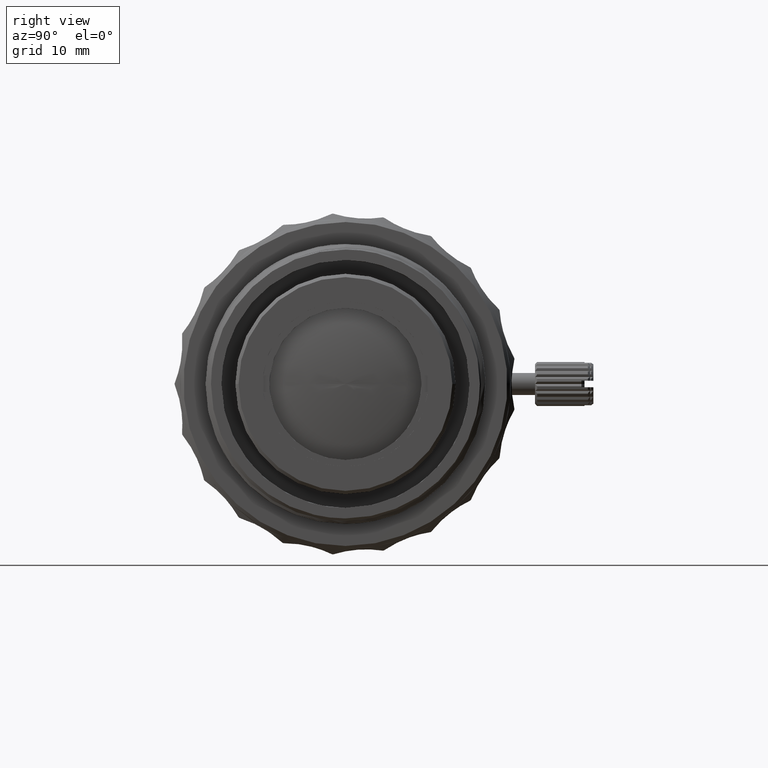
[diagram: clean part render]
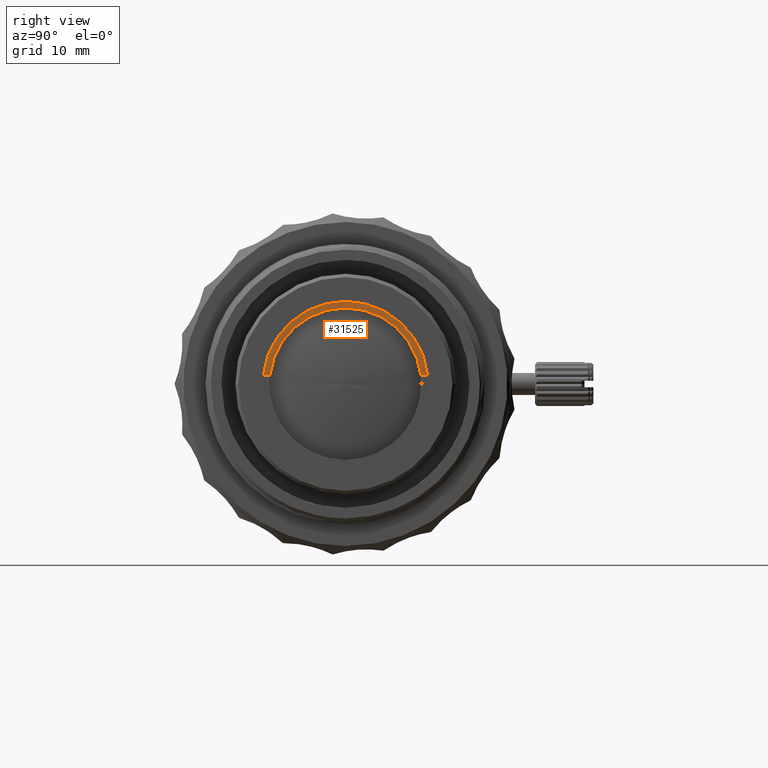
[diagram: same view with one face highlighted and labeled with its STEP entity id]
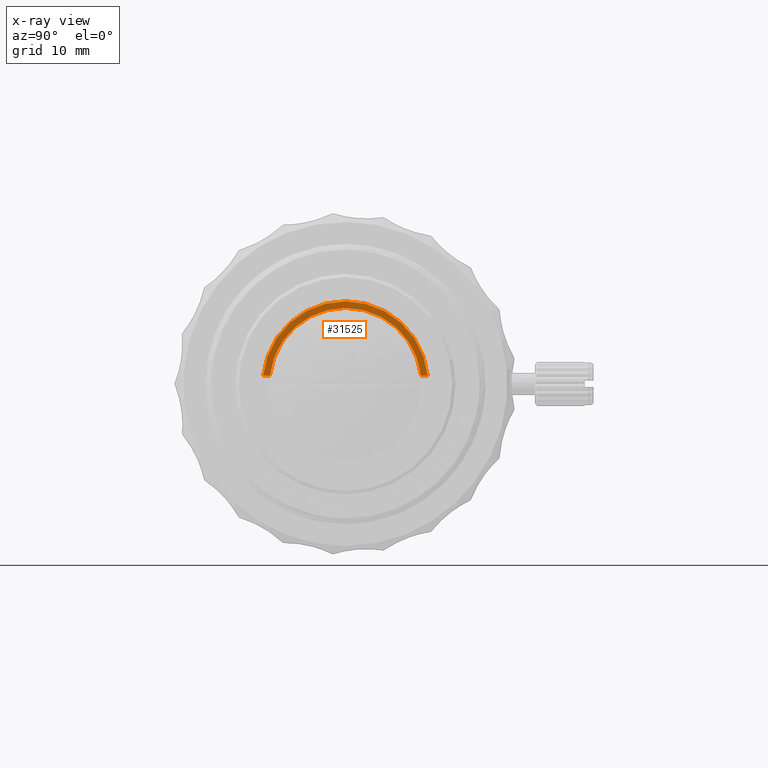
[diagram: x-ray of the same camera — body ghosted, the highlighted face saturated]
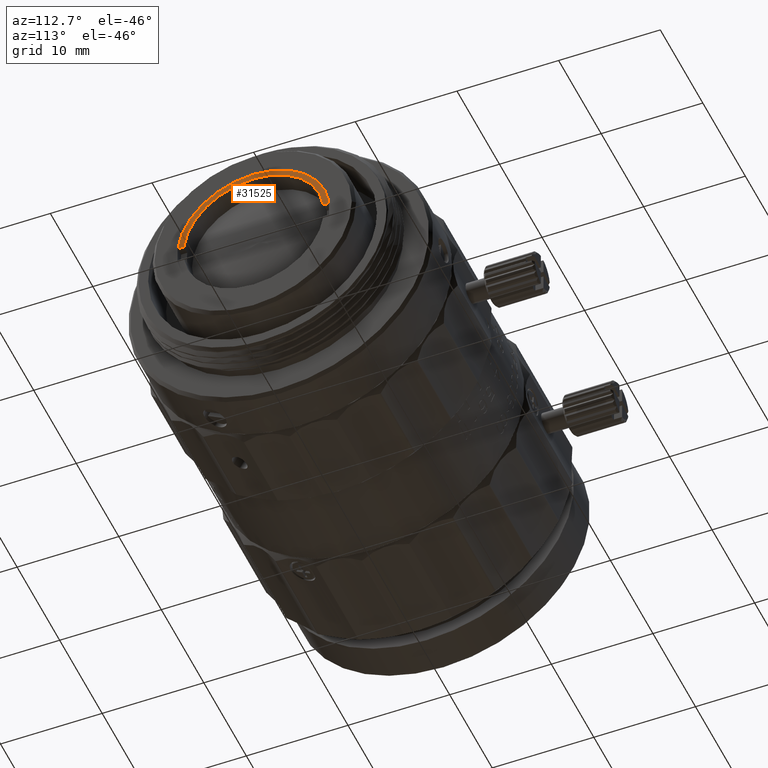
[diagram: same view with one face highlighted and labeled with its STEP entity id]
A machine part, right view. The second image highlights one B-rep face of the part: STEP entity #31525.
The next image is the same camera in x-ray: the body ghosted, the highlighted face saturated — about 0% of this face is hidden behind the body in this view.
A second angle (auxiliary view) of the same face is appended — the face is thin or edge-on in the first view.
In plain terms, the highlighted planar face has unit normal (1, -0, 0).
Its self-contained STEP definition (entity closure, byte-faithful):
#409 = CARTESIAN_POINT ( 'NONE',  ( 6.099999999999999645, 6.859118019104204933, 0.7500000000000109912 ) ) ;
#1780 = CARTESIAN_POINT ( 'NONE',  ( 6.099999999999999645, -6.859118019104204933, 0.7500000000000109912 ) ) ;
#5674 = DIRECTION ( 'NONE',  ( -0.000000000000000000, -1.000000000000000000, -0.000000000000000000 ) ) ;
#5833 = ORIENTED_EDGE ( 'NONE', *, *, #17661, .T. ) ;
#7149 = DIRECTION ( 'NONE',  ( 0.000000000000000000, 0.000000000000000000, -1.000000000000000000 ) ) ;
#7153 = DIRECTION ( 'NONE',  ( -1.000000000000000000, 0.000000000000000000, -0.000000000000000000 ) ) ;
#7392 = ORIENTED_EDGE ( 'NONE', *, *, #22773, .F. ) ;
#7535 = CARTESIAN_POINT ( 'NONE',  ( 6.099999999999999645, -7.760902009432000703, 7.799999999999999822 ) ) ;
#8221 = DIRECTION ( 'NONE',  ( 0.000000000000000000, 8.881784197001252323E-16, -1.000000000000000000 ) ) ;
#8258 = ORIENTED_EDGE ( 'NONE', *, *, #12858, .F. ) ;
#9127 = EDGE_CURVE ( 'NONE', #46183, #51234, #76915, .T. ) ;
#10365 = LINE ( 'NONE', #73344, #19022 ) ;
#12683 = DIRECTION ( 'NONE',  ( -0.000000000000000000, 1.000000000000000000, -0.000000000000000000 ) ) ;
#12858 = EDGE_CURVE ( 'NONE', #36141, #38992, #69658, .T. ) ;
#13015 = DIRECTION ( 'NONE',  ( 0.000000000000000000, 0.000000000000000000, -1.000000000000000000 ) ) ;
#14518 = CIRCLE ( 'NONE', #24550, 6.900000000000001243 ) ;
#14860 = DIRECTION ( 'NONE',  ( -1.000000000000000000, -0.000000000000000000, -0.000000000000000000 ) ) ;
#15292 = DIRECTION ( 'NONE',  ( 0.000000000000000000, 0.000000000000000000, -1.000000000000000000 ) ) ;
#15675 = CARTESIAN_POINT ( 'NONE',  ( 6.099999999999999645, 8.450062914116738633E-16, 6.900000000000001243 ) ) ;
#17046 = CARTESIAN_POINT ( 'NONE',  ( 6.099999999999999645, 0.000000000000000000, 0.7500000000000006661 ) ) ;
#17626 = VECTOR ( 'NONE', #5674, 1000.000000000000000 ) ;
#17661 = EDGE_CURVE ( 'NONE', #37044, #17806, #10365, .T. ) ;
#17806 = VERTEX_POINT ( 'NONE', #35799 ) ;
#19022 = VECTOR ( 'NONE', #12683, 1000.000000000000000 ) ;
#22773 = EDGE_CURVE ( 'NONE', #46183, #36141, #70701, .T. ) ;
#22935 = ORIENTED_EDGE ( 'NONE', *, *, #31496, .T. ) ;
#24550 = AXIS2_PLACEMENT_3D ( 'NONE', #61549, #7153, #25563 ) ;
#25563 = DIRECTION ( 'NONE',  ( 0.000000000000000000, 0.000000000000000000, -1.000000000000000000 ) ) ;
#25871 = CARTESIAN_POINT ( 'NONE',  ( 6.099999999999999645, 0.000000000000000000, 0.000000000000000000 ) ) ;
#26300 = CARTESIAN_POINT ( 'NONE',  ( 6.099999999999999645, 0.000000000000000000, 0.000000000000000000 ) ) ;
#31496 = EDGE_CURVE ( 'NONE', #51234, #37044, #14518, .T. ) ;
#31525 = ADVANCED_FACE ( 'NONE', ( #58963 ), #43167, .T. ) ;
#35799 = CARTESIAN_POINT ( 'NONE',  ( 6.099999999999999645, 7.462405778299651793, 0.7499999999999822364 ) ) ;
#36141 = VERTEX_POINT ( 'NONE', #66199 ) ;
#36976 = EDGE_LOOP ( 'NONE', ( #8258, #7392, #70354, #22935, #5833, #56487 ) ) ;
#37044 = VERTEX_POINT ( 'NONE', #409 ) ;
#38992 = VERTEX_POINT ( 'NONE', #49133 ) ;
#40959 = DIRECTION ( 'NONE',  ( 1.000000000000000000, -0.000000000000000000, 0.000000000000000000 ) ) ;
#43167 = PLANE ( 'NONE',  #60746 ) ;
#46183 = VERTEX_POINT ( 'NONE', #1780 ) ;
#49032 = DIRECTION ( 'NONE',  ( -1.000000000000000000, 0.000000000000000000, -0.000000000000000000 ) ) ;
#49133 = CARTESIAN_POINT ( 'NONE',  ( 6.099999999999999645, 9.184850993605147944E-16, 7.500000000000000000 ) ) ;
#49414 = AXIS2_PLACEMENT_3D ( 'NONE', #54143, #49032, #7149 ) ;
#51234 = VERTEX_POINT ( 'NONE', #15675 ) ;
#54143 = CARTESIAN_POINT ( 'NONE',  ( 6.099999999999999645, 0.000000000000000000, 0.000000000000000000 ) ) ;
#56487 = ORIENTED_EDGE ( 'NONE', *, *, #69356, .F. ) ;
#57970 = DIRECTION ( 'NONE',  ( -1.000000000000000000, -0.000000000000000000, -0.000000000000000000 ) ) ;
#58963 = FACE_OUTER_BOUND ( 'NONE', #36976, .T. ) ;
#60746 = AXIS2_PLACEMENT_3D ( 'NONE', #7535, #40959, #13015 ) ;
#61549 = CARTESIAN_POINT ( 'NONE',  ( 6.099999999999999645, 0.000000000000000000, 0.000000000000000000 ) ) ;
#65563 = AXIS2_PLACEMENT_3D ( 'NONE', #25871, #14860, #8221 ) ;
#66199 = CARTESIAN_POINT ( 'NONE',  ( 6.099999999999999645, -7.462405778299824100, 0.7500000000000003331 ) ) ;
#69356 = EDGE_CURVE ( 'NONE', #38992, #17806, #70556, .T. ) ;
#69658 = CIRCLE ( 'NONE', #77153, 7.500000000000000000 ) ;
#70354 = ORIENTED_EDGE ( 'NONE', *, *, #9127, .T. ) ;
#70556 = CIRCLE ( 'NONE', #65563, 7.500000000000000000 ) ;
#70701 = LINE ( 'NONE', #17046, #17626 ) ;
#73344 = CARTESIAN_POINT ( 'NONE',  ( 6.099999999999999645, -4.336808689942017736E-16, 0.7500000000000000000 ) ) ;
#76915 = CIRCLE ( 'NONE', #49414, 6.900000000000001243 ) ;
#77153 = AXIS2_PLACEMENT_3D ( 'NONE', #26300, #57970, #15292 ) ;